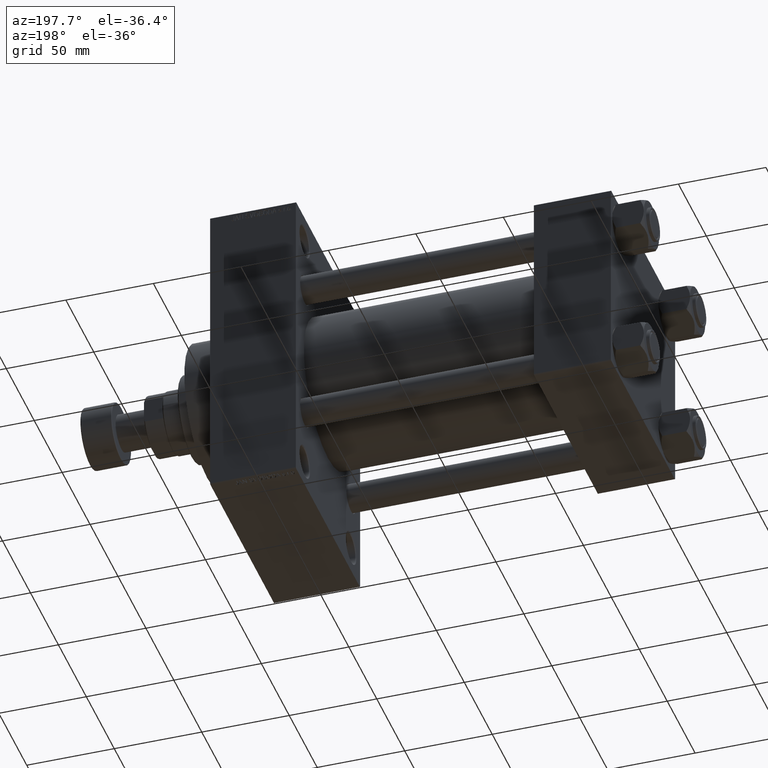
[diagram: clean part render]
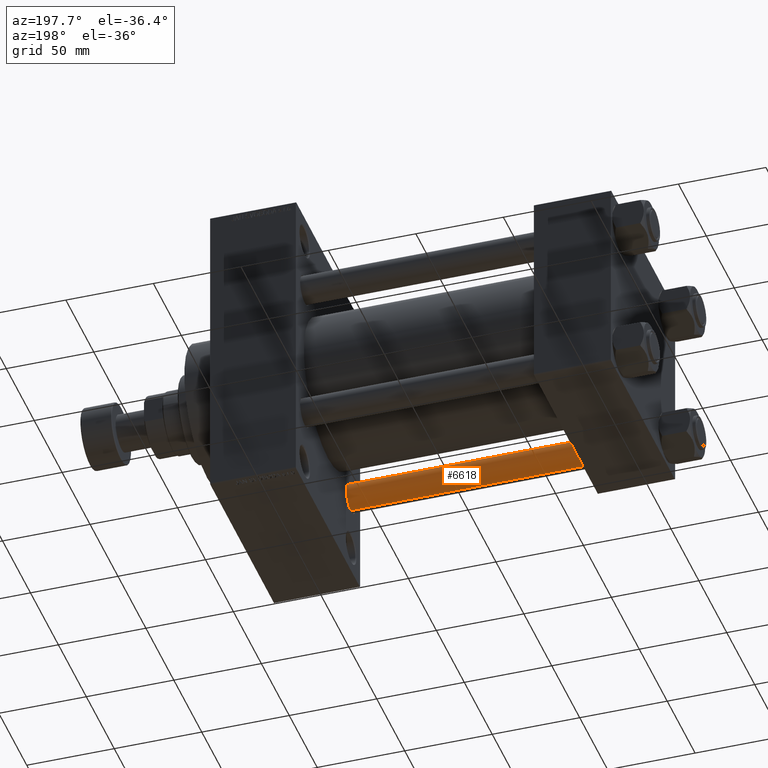
[diagram: same view with one face highlighted and labeled with its STEP entity id]
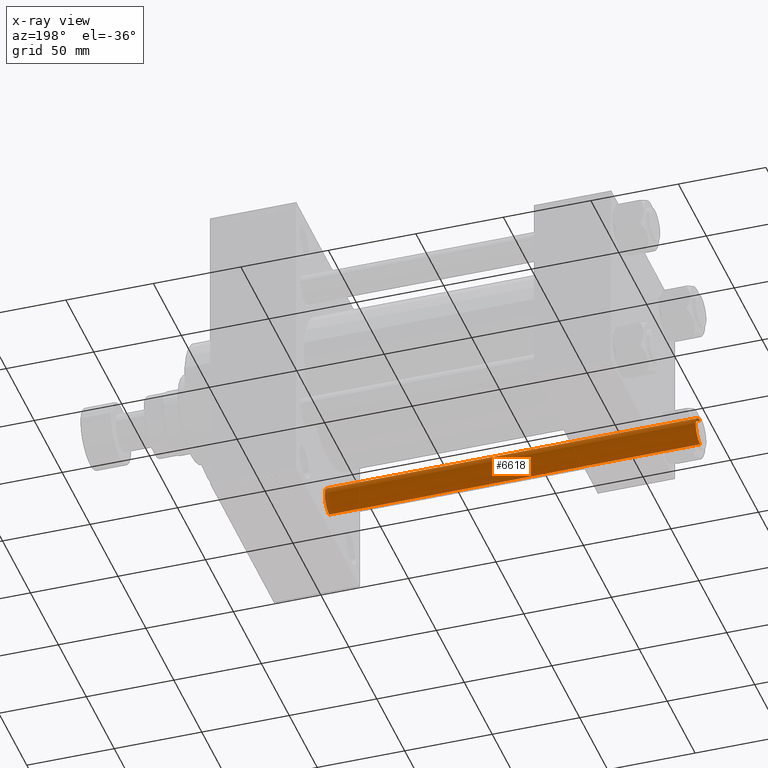
[diagram: x-ray of the same camera — body ghosted, the highlighted face saturated]
A machine part, auxiliary view. The second image highlights one B-rep face of the part: STEP entity #6618.
The next image is the same camera in x-ray: the body ghosted, the highlighted face saturated — about 1% of this face is hidden behind the body in this view.
In plain terms, the highlighted cylindrical surface (edge-blend (fillet) strip) has radius 8 mm, axis along (1, 0, 0).
Its self-contained STEP definition (entity closure, byte-faithful):
#900 = ORIENTED_EDGE ( 'NONE', *, *, #22371, .F. ) ;
#4291 = CYLINDRICAL_SURFACE ( 'NONE', #38590, 8.000000000000000000 ) ;
#4627 = DIRECTION ( 'NONE',  ( 1.000000000000000000, 0.000000000000000000, 0.000000000000000000 ) ) ;
#4749 = ORIENTED_EDGE ( 'NONE', *, *, #6937, .T. ) ;
#6618 = ADVANCED_FACE ( 'NONE', ( #33485 ), #4291, .T. ) ;
#6937 = EDGE_CURVE ( 'NONE', #40852, #17736, #16067, .T. ) ;
#7438 = CARTESIAN_POINT ( 'NONE',  ( 0.000000000000000000, 0.000000000000000000, 213.0000000000000000 ) ) ;
#7979 = CARTESIAN_POINT ( 'NONE',  ( -8.000000000000000000, 0.000000000000000000, 0.4999999999999726885 ) ) ;
#7985 = VERTEX_POINT ( 'NONE', #34398 ) ;
#11565 = ORIENTED_EDGE ( 'NONE', *, *, #29941, .T. ) ;
#14747 = DIRECTION ( 'NONE',  ( -1.000000000000000000, 0.000000000000000000, 0.000000000000000000 ) ) ;
#15112 = CARTESIAN_POINT ( 'NONE',  ( 0.000000000000000000, 0.000000000000000000, 212.5000000000000284 ) ) ;
#15578 = CARTESIAN_POINT ( 'NONE',  ( 8.000000000000000000, 9.797174393178825657E-16, 212.5000000000000284 ) ) ;
#15834 = DIRECTION ( 'NONE',  ( 0.000000000000000000, 0.000000000000000000, -1.000000000000000000 ) ) ;
#16067 = CIRCLE ( 'NONE', #31615, 8.000000000000000000 ) ;
#17736 = VERTEX_POINT ( 'NONE', #30974 ) ;
#19549 = LINE ( 'NONE', #34397, #38935 ) ;
#19603 = ORIENTED_EDGE ( 'NONE', *, *, #23669, .T. ) ;
#22371 = EDGE_CURVE ( 'NONE', #40852, #7985, #26325, .T. ) ;
#22649 = DIRECTION ( 'NONE',  ( 1.000000000000000000, 0.000000000000000000, 0.000000000000000000 ) ) ;
#23111 = CARTESIAN_POINT ( 'NONE',  ( 0.000000000000000000, 0.000000000000000000, 0.4999999999999726885 ) ) ;
#23669 = EDGE_CURVE ( 'NONE', #17736, #42022, #19549, .T. ) ;
#25851 = CARTESIAN_POINT ( 'NONE',  ( 8.000000000000000000, 9.797174393178825657E-16, 213.0000000000000000 ) ) ;
#26325 = LINE ( 'NONE', #25851, #38120 ) ;
#28842 = EDGE_LOOP ( 'NONE', ( #900, #4749, #19603, #11565 ) ) ;
#29941 = EDGE_CURVE ( 'NONE', #42022, #7985, #37683, .T. ) ;
#30974 = CARTESIAN_POINT ( 'NONE',  ( -8.000000000000000000, 0.000000000000000000, 212.5000000000000284 ) ) ;
#31615 = AXIS2_PLACEMENT_3D ( 'NONE', #15112, #15834, #22649 ) ;
#33485 = FACE_OUTER_BOUND ( 'NONE', #28842, .T. ) ;
#34397 = CARTESIAN_POINT ( 'NONE',  ( -8.000000000000000000, 0.000000000000000000, 213.0000000000000000 ) ) ;
#34398 = CARTESIAN_POINT ( 'NONE',  ( 8.000000000000000000, 9.797174393178825657E-16, 0.4999999999999726885 ) ) ;
#37683 = CIRCLE ( 'NONE', #42346, 8.000000000000000000 ) ;
#37950 = DIRECTION ( 'NONE',  ( -0.000000000000000000, -0.000000000000000000, 1.000000000000000000 ) ) ;
#38120 = VECTOR ( 'NONE', #40702, 1000.000000000000000 ) ;
#38590 = AXIS2_PLACEMENT_3D ( 'NONE', #7438, #44692, #14747 ) ;
#38935 = VECTOR ( 'NONE', #45125, 1000.000000000000000 ) ;
#40702 = DIRECTION ( 'NONE',  ( -0.000000000000000000, -0.000000000000000000, -1.000000000000000000 ) ) ;
#40852 = VERTEX_POINT ( 'NONE', #15578 ) ;
#42022 = VERTEX_POINT ( 'NONE', #7979 ) ;
#42346 = AXIS2_PLACEMENT_3D ( 'NONE', #23111, #37950, #4627 ) ;
#44692 = DIRECTION ( 'NONE',  ( -0.000000000000000000, -0.000000000000000000, -1.000000000000000000 ) ) ;
#45125 = DIRECTION ( 'NONE',  ( -0.000000000000000000, -0.000000000000000000, -1.000000000000000000 ) ) ;